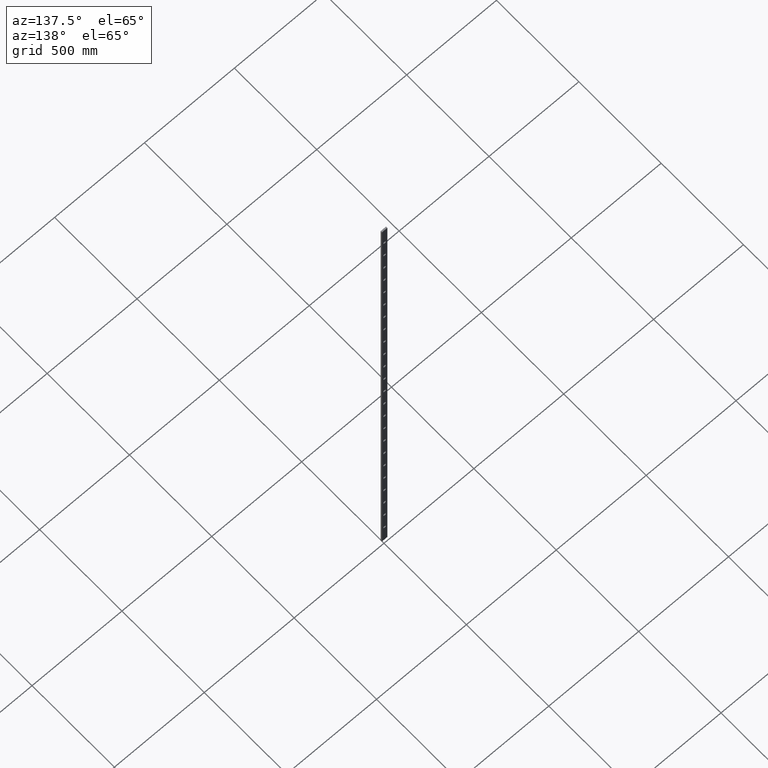
[diagram: clean part render]
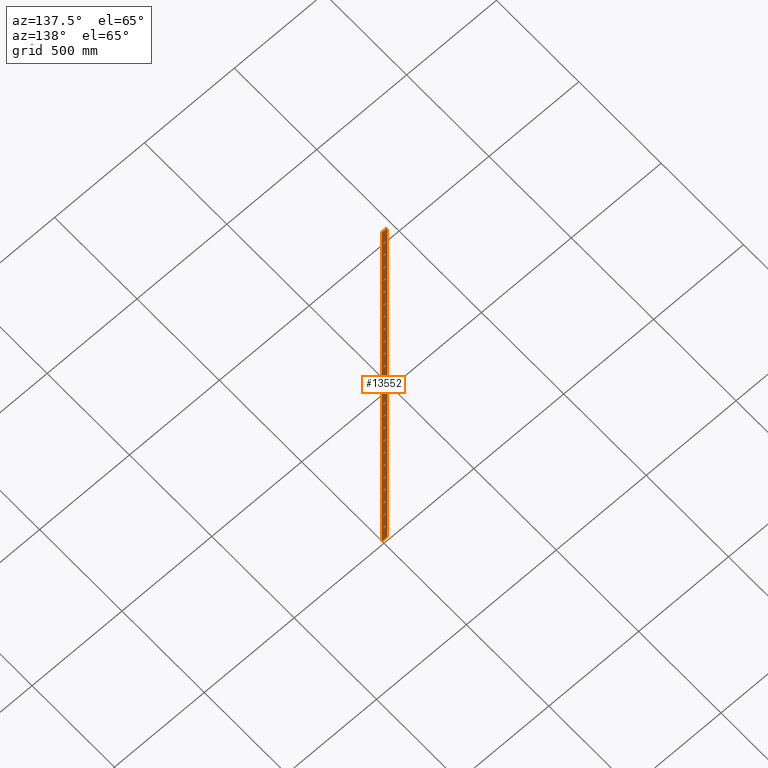
[diagram: same view with one face highlighted and labeled with its STEP entity id]
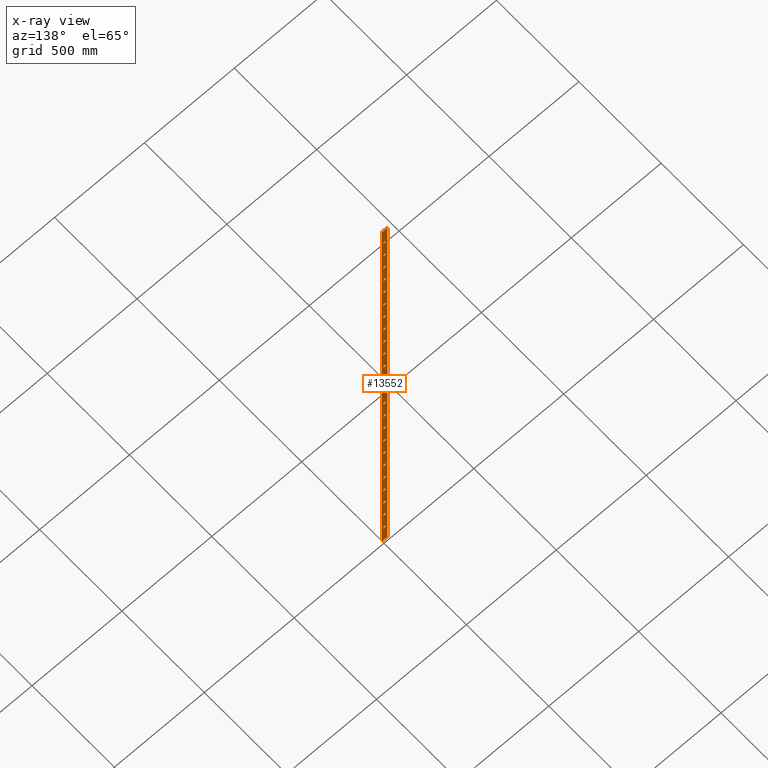
[diagram: x-ray of the same camera — body ghosted, the highlighted face saturated]
A machine part, auxiliary view. The second image highlights one B-rep face of the part: STEP entity #13552.
The next image is the same camera in x-ray: the body ghosted, the highlighted face saturated — about 0% of this face is hidden behind the body in this view.
In plain terms, the highlighted planar face has unit normal (0, 1, 0).
Its self-contained STEP definition (entity closure, byte-faithful):
#9 = DIRECTION ( 'NONE',  ( -0.000000000000000000, -0.000000000000000000, -1.000000000000000000 ) ) ;
#10 = VECTOR ( 'NONE', #15790, 1000.000000000000000 ) ;
#14 = ORIENTED_EDGE ( 'NONE', *, *, #17220, .F. ) ;
#42 = VERTEX_POINT ( 'NONE', #14170 ) ;
#44 = ORIENTED_EDGE ( 'NONE', *, *, #3305, .F. ) ;
#132 = DIRECTION ( 'NONE',  ( 1.334402673828323446E-16, 0.000000000000000000, 1.000000000000000000 ) ) ;
#176 = ORIENTED_EDGE ( 'NONE', *, *, #10719, .F. ) ;
#222 = CARTESIAN_POINT ( 'NONE',  ( -6.499999999999968914, 4.000000000000000000, -1133.500000000000227 ) ) ;
#241 = DIRECTION ( 'NONE',  ( 1.000000000000000000, 0.000000000000000000, 0.000000000000000000 ) ) ;
#256 = FACE_BOUND ( 'NONE', #5189, .T. ) ;
#335 = VECTOR ( 'NONE', #15452, 1000.000000000000000 ) ;
#340 = CARTESIAN_POINT ( 'NONE',  ( 6.500000000000308198, 4.000000000000000000, 1133.499999999997499 ) ) ;
#363 = CARTESIAN_POINT ( 'NONE',  ( 6.500000000000103029, 4.000000000000000000, -533.5000000000007958 ) ) ;
#457 = FACE_BOUND ( 'NONE', #5804, .T. ) ;
#458 = CARTESIAN_POINT ( 'NONE',  ( -6.499999999999689138, 4.000000000000000000, 1146.499999999997499 ) ) ;
#511 = VERTEX_POINT ( 'NONE', #2990 ) ;
#518 = CARTESIAN_POINT ( 'NONE',  ( -6.499999999999762856, 4.000000000000000000, 546.4999999999979536 ) ) ;
#549 = EDGE_CURVE ( 'NONE', #7540, #9321, #11278, .T. ) ;
#557 = EDGE_LOOP ( 'NONE', ( #3584, #12918, #15809, #176 ) ) ;
#558 = DIRECTION ( 'NONE',  ( -1.000000000000000000, -0.000000000000000000, -0.000000000000000000 ) ) ;
#596 = CARTESIAN_POINT ( 'NONE',  ( 6.500000000000029310, 4.000000000000000000, -1146.500000000000000 ) ) ;
#597 = VECTOR ( 'NONE', #14882, 1000.000000000000000 ) ;
#599 = CARTESIAN_POINT ( 'NONE',  ( 15.00000000000000000, 4.000000000000000000, -1500.000000000000000 ) ) ;
#643 = LINE ( 'NONE', #6776, #5119 ) ;
#671 = EDGE_CURVE ( 'NONE', #10078, #15834, #11053, .T. ) ;
#687 = LINE ( 'NONE', #16273, #10884 ) ;
#725 = EDGE_CURVE ( 'NONE', #11865, #15817, #8949, .T. ) ;
#738 = VERTEX_POINT ( 'NONE', #11027 ) ;
#744 = DIRECTION ( 'NONE',  ( 1.000000000000000000, 0.000000000000000000, 1.708035422500241074E-14 ) ) ;
#760 = CARTESIAN_POINT ( 'NONE',  ( -6.499999999999881872, 4.000000000000000000, -426.5000000000007958 ) ) ;
#776 = DIRECTION ( 'NONE',  ( 1.000000000000000000, 0.000000000000000000, 0.000000000000000000 ) ) ;
#798 = VECTOR ( 'NONE', #132, 1000.000000000000000 ) ;
#812 = LINE ( 'NONE', #7276, #7411 ) ;
#832 = LINE ( 'NONE', #13876, #7656 ) ;
#865 = DIRECTION ( 'NONE',  ( 1.000000000000000000, 0.000000000000000000, 0.000000000000000000 ) ) ;
#882 = VECTOR ( 'NONE', #9, 1000.000000000000000 ) ;
#1023 = VERTEX_POINT ( 'NONE', #5314 ) ;
#1029 = ORIENTED_EDGE ( 'NONE', *, *, #2967, .F. ) ;
#1030 = ORIENTED_EDGE ( 'NONE', *, *, #2696, .F. ) ;
#1031 = VERTEX_POINT ( 'NONE', #1262 ) ;
#1048 = ORIENTED_EDGE ( 'NONE', *, *, #10416, .F. ) ;
#1060 = LINE ( 'NONE', #6202, #14403 ) ;
#1099 = LINE ( 'NONE', #5880, #14674 ) ;
#1118 = VECTOR ( 'NONE', #2690, 1000.000000000000000 ) ;
#1137 = CARTESIAN_POINT ( 'NONE',  ( -6.499999999999911182, 4.000000000000000000, -666.5000000000005684 ) ) ;
#1170 = ORIENTED_EDGE ( 'NONE', *, *, #16291, .F. ) ;
#1215 = VECTOR ( 'NONE', #16669, 1000.000000000000000 ) ;
#1232 = CARTESIAN_POINT ( 'NONE',  ( -6.499999999999895195, 4.000000000000000000, -533.5000000000007958 ) ) ;
#1249 = VERTEX_POINT ( 'NONE', #10119 ) ;
#1262 = CARTESIAN_POINT ( 'NONE',  ( -6.499999999999807265, 4.000000000000000000, 186.4999999999983231 ) ) ;
#1298 = CARTESIAN_POINT ( 'NONE',  ( -6.499999999999853451, 4.000000000000000000, -186.5000000000012221 ) ) ;
#1316 = VECTOR ( 'NONE', #7007, 1000.000000000000000 ) ;
#1360 = DIRECTION ( 'NONE',  ( -0.000000000000000000, -0.000000000000000000, -1.000000000000000000 ) ) ;
#1365 = CARTESIAN_POINT ( 'NONE',  ( -6.499999999999793943, 4.000000000000000000, 293.4999999999982947 ) ) ;
#1375 = DIRECTION ( 'NONE',  ( -0.000000000000000000, -0.000000000000000000, -1.000000000000000000 ) ) ;
#1404 = EDGE_CURVE ( 'NONE', #9008, #6165, #7886, .T. ) ;
#1421 = CARTESIAN_POINT ( 'NONE',  ( -6.499999999999690914, 4.000000000000000000, 1133.499999999997499 ) ) ;
#1438 = LINE ( 'NONE', #2962, #15439 ) ;
#1444 = CARTESIAN_POINT ( 'NONE',  ( -6.499999999999659828, 4.000000000000000000, 1386.499999999997272 ) ) ;
#1514 = CARTESIAN_POINT ( 'NONE',  ( 6.500000000000000000, 4.000000000000000000, -1373.500000000000000 ) ) ;
#1519 = FACE_BOUND ( 'NONE', #7299, .T. ) ;
#1543 = LINE ( 'NONE', #1421, #12787 ) ;
#1582 = ORIENTED_EDGE ( 'NONE', *, *, #16320, .F. ) ;
#1586 = CARTESIAN_POINT ( 'NONE',  ( 6.500000000000293987, 4.000000000000000000, 1026.499999999997272 ) ) ;
#1595 = DIRECTION ( 'NONE',  ( -1.000000000000000000, -0.000000000000000000, -0.000000000000000000 ) ) ;
#1619 = EDGE_CURVE ( 'NONE', #13429, #7208, #2581, .T. ) ;
#1639 = DIRECTION ( 'NONE',  ( 0.000000000000000000, -0.000000000000000000, 1.000000000000000000 ) ) ;
#1657 = CARTESIAN_POINT ( 'NONE',  ( 6.500000000000175859, 4.000000000000000000, 66.49999999999845102 ) ) ;
#1683 = DIRECTION ( 'NONE',  ( 1.334402673828323446E-16, 0.000000000000000000, 1.000000000000000000 ) ) ;
#1699 = EDGE_CURVE ( 'NONE', #4124, #9385, #11253, .T. ) ;
#1750 = CARTESIAN_POINT ( 'NONE',  ( -6.499999999999809042, 4.000000000000000000, 173.4999999999984368 ) ) ;
#1759 = VECTOR ( 'NONE', #6133, 1000.000000000000000 ) ;
#1775 = DIRECTION ( 'NONE',  ( 1.000000000000000000, 0.000000000000000000, 0.000000000000000000 ) ) ;
#1779 = EDGE_CURVE ( 'NONE', #12780, #5205, #15695, .T. ) ;
#1812 = EDGE_CURVE ( 'NONE', #4084, #4356, #12076, .T. ) ;
#1923 = ORIENTED_EDGE ( 'NONE', *, *, #7872, .T. ) ;
#1930 = DIRECTION ( 'NONE',  ( 1.334402673828323446E-16, 0.000000000000000000, 1.000000000000000000 ) ) ;
#2019 = DIRECTION ( 'NONE',  ( -1.000000000000000000, -0.000000000000000000, -0.000000000000000000 ) ) ;
#2031 = CARTESIAN_POINT ( 'NONE',  ( -6.499999999999938716, 4.000000000000000000, -893.5000000000004547 ) ) ;
#2051 = CARTESIAN_POINT ( 'NONE',  ( 6.500000000000264677, 4.000000000000000000, 773.4999999999976126 ) ) ;
#2083 = CARTESIAN_POINT ( 'NONE',  ( -6.499999999999867661, 4.000000000000000000, -306.5000000000010800 ) ) ;
#2117 = ORIENTED_EDGE ( 'NONE', *, *, #5373, .F. ) ;
#2153 = CARTESIAN_POINT ( 'NONE',  ( -6.499999999999706013, 4.000000000000000000, 1013.499999999997385 ) ) ;
#2172 = VERTEX_POINT ( 'NONE', #15056 ) ;
#2177 = DIRECTION ( 'NONE',  ( -1.000000000000000000, -0.000000000000000000, -0.000000000000000000 ) ) ;
#2191 = VERTEX_POINT ( 'NONE', #15523 ) ;
#2234 = DIRECTION ( 'NONE',  ( -1.000000000000000000, -0.000000000000000000, -0.000000000000000000 ) ) ;
#2251 = VERTEX_POINT ( 'NONE', #4469 ) ;
#2282 = CARTESIAN_POINT ( 'NONE',  ( -6.499999999999968914, 4.000000000000000000, -1133.500000000000227 ) ) ;
#2314 = EDGE_CURVE ( 'NONE', #14869, #2191, #12503, .T. ) ;
#2323 = DIRECTION ( 'NONE',  ( -1.000000000000000000, -0.000000000000000000, -0.000000000000000000 ) ) ;
#2325 = VERTEX_POINT ( 'NONE', #11652 ) ;
#2355 = CARTESIAN_POINT ( 'NONE',  ( -6.499999999999690914, 4.000000000000000000, 1133.499999999997499 ) ) ;
#2408 = LINE ( 'NONE', #13922, #14050 ) ;
#2417 = ORIENTED_EDGE ( 'NONE', *, *, #11041, .F. ) ;
#2419 = EDGE_CURVE ( 'NONE', #16064, #2543, #15699, .T. ) ;
#2426 = FACE_BOUND ( 'NONE', #5022, .T. ) ;
#2446 = EDGE_CURVE ( 'NONE', #15834, #16081, #13587, .T. ) ;
#2448 = CARTESIAN_POINT ( 'NONE',  ( -15.00000000000000000, 4.000000000000000000, -1500.000000000000000 ) ) ;
#2472 = VECTOR ( 'NONE', #9808, 1000.000000000000000 ) ;
#2485 = CARTESIAN_POINT ( 'NONE',  ( -6.499999999999809042, 4.000000000000000000, 173.4999999999984368 ) ) ;
#2505 = VECTOR ( 'NONE', #6652, 1000.000000000000000 ) ;
#2509 = EDGE_LOOP ( 'NONE', ( #6162, #14, #13081, #6426 ) ) ;
#2537 = ORIENTED_EDGE ( 'NONE', *, *, #5891, .F. ) ;
#2543 = VERTEX_POINT ( 'NONE', #13542 ) ;
#2581 = LINE ( 'NONE', #11126, #5538 ) ;
#2587 = ORIENTED_EDGE ( 'NONE', *, *, #4902, .F. ) ;
#2592 = VECTOR ( 'NONE', #14051, 1000.000000000000000 ) ;
#2593 = VERTEX_POINT ( 'NONE', #1514 ) ;
#2599 = DIRECTION ( 'NONE',  ( 1.000000000000000000, 0.000000000000000000, 0.000000000000000000 ) ) ;
#2608 = LINE ( 'NONE', #13008, #3457 ) ;
#2620 = VECTOR ( 'NONE', #4109, 1000.000000000000000 ) ;
#2631 = DIRECTION ( 'NONE',  ( -1.000000000000000000, -0.000000000000000000, -0.000000000000000000 ) ) ;
#2641 = VECTOR ( 'NONE', #4534, 1000.000000000000000 ) ;
#2673 = CARTESIAN_POINT ( 'NONE',  ( -6.499999999999867661, 4.000000000000000000, -306.5000000000010800 ) ) ;
#2690 = DIRECTION ( 'NONE',  ( 1.334402673828323446E-16, 0.000000000000000000, 1.000000000000000000 ) ) ;
#2696 = EDGE_CURVE ( 'NONE', #8786, #13429, #3426, .T. ) ;
#2754 = CARTESIAN_POINT ( 'NONE',  ( -6.499999999999690914, 4.000000000000000000, 1133.499999999997499 ) ) ;
#2760 = VECTOR ( 'NONE', #14467, 1000.000000000000000 ) ;
#2782 = VERTEX_POINT ( 'NONE', #14363 ) ;
#2798 = ORIENTED_EDGE ( 'NONE', *, *, #4230, .F. ) ;
#2818 = FACE_BOUND ( 'NONE', #8283, .T. ) ;
#2843 = LINE ( 'NONE', #16794, #10288 ) ;
#2844 = VERTEX_POINT ( 'NONE', #7707 ) ;
#2870 = DIRECTION ( 'NONE',  ( 1.334402673828323446E-16, 0.000000000000000000, 1.000000000000000000 ) ) ;
#2896 = VECTOR ( 'NONE', #2631, 1000.000000000000000 ) ;
#2918 = VERTEX_POINT ( 'NONE', #5369 ) ;
#2962 = CARTESIAN_POINT ( 'NONE',  ( -6.499999999999733546, 4.000000000000000000, 786.4999999999974989 ) ) ;
#2965 = CARTESIAN_POINT ( 'NONE',  ( 6.500000000000264677, 4.000000000000000000, 773.4999999999976126 ) ) ;
#2967 = EDGE_CURVE ( 'NONE', #14321, #4124, #3194, .T. ) ;
#2990 = CARTESIAN_POINT ( 'NONE',  ( -6.499999999999675815, 4.000000000000000000, 1253.499999999997272 ) ) ;
#3049 = LINE ( 'NONE', #1750, #4134 ) ;
#3075 = CARTESIAN_POINT ( 'NONE',  ( -6.499999999999764633, 4.000000000000000000, 533.4999999999980673 ) ) ;
#3076 = EDGE_CURVE ( 'NONE', #10496, #11497, #5969, .T. ) ;
#3083 = CARTESIAN_POINT ( 'NONE',  ( 6.500000000000073719, 4.000000000000000000, -786.5000000000004547 ) ) ;
#3089 = CARTESIAN_POINT ( 'NONE',  ( -6.499999999999733546, 4.000000000000000000, 786.4999999999974989 ) ) ;
#3094 = LINE ( 'NONE', #3722, #17058 ) ;
#3096 = CARTESIAN_POINT ( 'NONE',  ( 6.500000000000073719, 4.000000000000000000, -773.5000000000005684 ) ) ;
#3119 = VERTEX_POINT ( 'NONE', #14971 ) ;
#3145 = VECTOR ( 'NONE', #1775, 1000.000000000000000 ) ;
#3146 = DIRECTION ( 'NONE',  ( -0.000000000000000000, -0.000000000000000000, -1.000000000000000000 ) ) ;
#3157 = CARTESIAN_POINT ( 'NONE',  ( 6.500000000000278888, 4.000000000000000000, 893.4999999999977263 ) ) ;
#3180 = EDGE_LOOP ( 'NONE', ( #44, #4083, #6243, #4872 ) ) ;
#3190 = EDGE_CURVE ( 'NONE', #9689, #8181, #3921, .T. ) ;
#3194 = LINE ( 'NONE', #4454, #9755 ) ;
#3214 = EDGE_CURVE ( 'NONE', #3424, #7836, #4562, .T. ) ;
#3248 = VECTOR ( 'NONE', #17399, 1000.000000000000000 ) ;
#3270 = EDGE_CURVE ( 'NONE', #7546, #5719, #5614, .T. ) ;
#3305 = EDGE_CURVE ( 'NONE', #2844, #9689, #9017, .T. ) ;
#3307 = FACE_OUTER_BOUND ( 'NONE', #14925, .T. ) ;
#3334 = DIRECTION ( 'NONE',  ( -0.000000000000000000, -0.000000000000000000, -1.000000000000000000 ) ) ;
#3357 = LINE ( 'NONE', #9198, #8027 ) ;
#3392 = CARTESIAN_POINT ( 'NONE',  ( -6.499999999999969802, 4.000000000000000000, -1146.500000000000000 ) ) ;
#3424 = VERTEX_POINT ( 'NONE', #5446 ) ;
#3426 = LINE ( 'NONE', #10012, #8756 ) ;
#3455 = CARTESIAN_POINT ( 'NONE',  ( 6.500000000000000000, 4.000000000000000000, -1386.499999999999773 ) ) ;
#3457 = VECTOR ( 'NONE', #17309, 1000.000000000000000 ) ;
#3484 = VECTOR ( 'NONE', #16248, 1000.000000000000000 ) ;
#3505 = VERTEX_POINT ( 'NONE', #9773 ) ;
#3552 = VECTOR ( 'NONE', #10541, 1000.000000000000000 ) ;
#3558 = DIRECTION ( 'NONE',  ( 1.000000000000000000, 0.000000000000000000, 0.000000000000000000 ) ) ;
#3584 = ORIENTED_EDGE ( 'NONE', *, *, #3270, .F. ) ;
#3595 = CARTESIAN_POINT ( 'NONE',  ( 6.500000000000103029, 4.000000000000000000, -546.5000000000006821 ) ) ;
#3596 = ORIENTED_EDGE ( 'NONE', *, *, #16550, .F. ) ;
#3602 = VERTEX_POINT ( 'NONE', #12542 ) ;
#3621 = VECTOR ( 'NONE', #13613, 1000.000000000000000 ) ;
#3624 = DIRECTION ( 'NONE',  ( -0.000000000000000000, -0.000000000000000000, -1.000000000000000000 ) ) ;
#3643 = VECTOR ( 'NONE', #8212, 1000.000000000000000 ) ;
#3722 = CARTESIAN_POINT ( 'NONE',  ( -6.499999999999896083, 4.000000000000000000, -546.5000000000006821 ) ) ;
#3752 = EDGE_CURVE ( 'NONE', #5205, #5019, #5605, .T. ) ;
#3756 = ORIENTED_EDGE ( 'NONE', *, *, #13218, .F. ) ;
#3804 = CARTESIAN_POINT ( 'NONE',  ( -6.499999999999911182, 4.000000000000000000, -666.5000000000005684 ) ) ;
#3858 = EDGE_CURVE ( 'NONE', #9818, #11414, #9838, .T. ) ;
#3868 = VERTEX_POINT ( 'NONE', #4640 ) ;
#3885 = ORIENTED_EDGE ( 'NONE', *, *, #10003, .F. ) ;
#3905 = VERTEX_POINT ( 'NONE', #8958 ) ;
#3906 = VECTOR ( 'NONE', #1930, 1000.000000000000000 ) ;
#3921 = LINE ( 'NONE', #15514, #10304 ) ;
#3975 = CARTESIAN_POINT ( 'NONE',  ( 6.500000000000146549, 4.000000000000000000, -186.5000000000012221 ) ) ;
#3990 = CARTESIAN_POINT ( 'NONE',  ( -6.499999999999793943, 4.000000000000000000, 293.4999999999982947 ) ) ;
#4012 = CARTESIAN_POINT ( 'NONE',  ( -6.499999999999779732, 4.000000000000000000, 413.4999999999981810 ) ) ;
#4019 = EDGE_CURVE ( 'NONE', #16081, #15128, #9623, .T. ) ;
#4030 = DIRECTION ( 'NONE',  ( 1.334402673828323446E-16, 0.000000000000000000, 1.000000000000000000 ) ) ;
#4078 = LINE ( 'NONE', #2355, #15948 ) ;
#4083 = ORIENTED_EDGE ( 'NONE', *, *, #5238, .F. ) ;
#4084 = VERTEX_POINT ( 'NONE', #5727 ) ;
#4091 = LINE ( 'NONE', #9433, #17203 ) ;
#4094 = EDGE_CURVE ( 'NONE', #11497, #1031, #3049, .T. ) ;
#4104 = VERTEX_POINT ( 'NONE', #15299 ) ;
#4109 = DIRECTION ( 'NONE',  ( -1.000000000000000000, -0.000000000000000000, -0.000000000000000000 ) ) ;
#4124 = VERTEX_POINT ( 'NONE', #11228 ) ;
#4127 = DIRECTION ( 'NONE',  ( 1.000000000000000000, 0.000000000000000000, 0.000000000000000000 ) ) ;
#4131 = EDGE_CURVE ( 'NONE', #3119, #4370, #7094, .T. ) ;
#4134 = VECTOR ( 'NONE', #1683, 1000.000000000000000 ) ;
#4182 = CARTESIAN_POINT ( 'NONE',  ( 6.500000000000058620, 4.000000000000000000, -906.5000000000003411 ) ) ;
#4187 = LINE ( 'NONE', #9313, #2896 ) ;
#4200 = LINE ( 'NONE', #11116, #798 ) ;
#4230 = EDGE_CURVE ( 'NONE', #6008, #13866, #2843, .T. ) ;
#4246 = LINE ( 'NONE', #15233, #14839 ) ;
#4263 = DIRECTION ( 'NONE',  ( 1.000000000000000000, 0.000000000000000000, 0.000000000000000000 ) ) ;
#4267 = VECTOR ( 'NONE', #11714, 1000.000000000000000 ) ;
#4309 = FACE_BOUND ( 'NONE', #557, .T. ) ;
#4339 = ORIENTED_EDGE ( 'NONE', *, *, #16876, .F. ) ;
#4356 = VERTEX_POINT ( 'NONE', #13589 ) ;
#4370 = VERTEX_POINT ( 'NONE', #8508 ) ;
#4387 = LINE ( 'NONE', #9767, #10956 ) ;
#4444 = VECTOR ( 'NONE', #9375, 1000.000000000000000 ) ;
#4454 = CARTESIAN_POINT ( 'NONE',  ( -6.499999999999940492, 4.000000000000000000, -906.5000000000003411 ) ) ;
#4466 = CARTESIAN_POINT ( 'NONE',  ( 6.500000000000308198, 4.000000000000000000, 1146.499999999997499 ) ) ;
#4469 = CARTESIAN_POINT ( 'NONE',  ( 6.500000000000029310, 4.000000000000000000, -1146.500000000000000 ) ) ;
#4478 = VECTOR ( 'NONE', #2599, 1000.000000000000000 ) ;
#4534 = DIRECTION ( 'NONE',  ( 1.334402673828323446E-16, 0.000000000000000000, 1.000000000000000000 ) ) ;
#4539 = LINE ( 'NONE', #3392, #1759 ) ;
#4549 = LINE ( 'NONE', #17568, #7304 ) ;
#4555 = EDGE_CURVE ( 'NONE', #13481, #11865, #15111, .T. ) ;
#4562 = LINE ( 'NONE', #2153, #12578 ) ;
#4571 = CARTESIAN_POINT ( 'NONE',  ( -6.499999999999867661, 4.000000000000000000, -306.5000000000010800 ) ) ;
#4583 = ORIENTED_EDGE ( 'NONE', *, *, #6695, .F. ) ;
#4632 = DIRECTION ( 'NONE',  ( 1.334402673828323446E-16, 0.000000000000000000, 1.000000000000000000 ) ) ;
#4637 = CARTESIAN_POINT ( 'NONE',  ( -6.499999999999821476, 4.000000000000000000, 66.49999999999845102 ) ) ;
#4640 = CARTESIAN_POINT ( 'NONE',  ( -6.499999999999880096, 4.000000000000000000, -413.5000000000008527 ) ) ;
#4663 = CARTESIAN_POINT ( 'NONE',  ( 6.500000000000338396, 4.000000000000000000, 1386.499999999997272 ) ) ;
#4824 = LINE ( 'NONE', #9074, #11578 ) ;
#4854 = EDGE_CURVE ( 'NONE', #7208, #14774, #687, .T. ) ;
#4872 = ORIENTED_EDGE ( 'NONE', *, *, #3190, .F. ) ;
#4885 = CARTESIAN_POINT ( 'NONE',  ( -6.499999999999955591, 4.000000000000000000, -1026.500000000000227 ) ) ;
#4896 = LINE ( 'NONE', #16369, #6597 ) ;
#4901 = LINE ( 'NONE', #14730, #4478 ) ;
#4902 = EDGE_CURVE ( 'NONE', #11260, #4104, #4549, .T. ) ;
#4904 = VECTOR ( 'NONE', #865, 1000.000000000000000 ) ;
#4950 = FACE_BOUND ( 'NONE', #11826, .T. ) ;
#4964 = FACE_BOUND ( 'NONE', #3180, .T. ) ;
#4973 = VERTEX_POINT ( 'NONE', #11149 ) ;
#4979 = DIRECTION ( 'NONE',  ( 1.334402673828323446E-16, 0.000000000000000000, 1.000000000000000000 ) ) ;
#4980 = EDGE_CURVE ( 'NONE', #2191, #511, #2408, .T. ) ;
#4998 = CARTESIAN_POINT ( 'NONE',  ( 6.500000000000160760, 4.000000000000000000, -66.50000000000133582 ) ) ;
#5005 = CARTESIAN_POINT ( 'NONE',  ( 6.500000000000131450, 4.000000000000000000, -306.5000000000010800 ) ) ;
#5011 = CARTESIAN_POINT ( 'NONE',  ( 6.500000000000205169, 4.000000000000000000, 293.4999999999982947 ) ) ;
#5015 = ORIENTED_EDGE ( 'NONE', *, *, #5544, .F. ) ;
#5019 = VERTEX_POINT ( 'NONE', #7073 ) ;
#5022 = EDGE_LOOP ( 'NONE', ( #3756, #13630, #3596, #17142 ) ) ;
#5024 = ORIENTED_EDGE ( 'NONE', *, *, #15529, .F. ) ;
#5030 = EDGE_CURVE ( 'NONE', #1023, #10128, #9175, .T. ) ;
#5036 = CARTESIAN_POINT ( 'NONE',  ( -6.499999999999924505, 4.000000000000000000, -773.5000000000005684 ) ) ;
#5050 = LINE ( 'NONE', #4571, #9295 ) ;
#5059 = EDGE_CURVE ( 'NONE', #9829, #15697, #10871, .T. ) ;
#5087 = ORIENTED_EDGE ( 'NONE', *, *, #13419, .F. ) ;
#5119 = VECTOR ( 'NONE', #7453, 1000.000000000000000 ) ;
#5158 = CARTESIAN_POINT ( 'NONE',  ( 15.00000000000000000, 4.000000000000000000, 1500.000000000000000 ) ) ;
#5177 = ORIENTED_EDGE ( 'NONE', *, *, #10743, .F. ) ;
#5189 = EDGE_LOOP ( 'NONE', ( #16021, #1582, #15596, #10798 ) ) ;
#5205 = VERTEX_POINT ( 'NONE', #6488 ) ;
#5212 = EDGE_CURVE ( 'NONE', #8658, #6009, #4091, .T. ) ;
#5218 = EDGE_CURVE ( 'NONE', #11564, #11561, #13187, .T. ) ;
#5233 = DIRECTION ( 'NONE',  ( 1.000000000000000000, 0.000000000000000000, 0.000000000000000000 ) ) ;
#5234 = CARTESIAN_POINT ( 'NONE',  ( 6.500000000000338396, 4.000000000000000000, 1373.499999999997272 ) ) ;
#5238 = EDGE_CURVE ( 'NONE', #11073, #2844, #5368, .T. ) ;
#5264 = EDGE_CURVE ( 'NONE', #14895, #3119, #9819, .T. ) ;
#5303 = CARTESIAN_POINT ( 'NONE',  ( -6.499999999999926281, 4.000000000000000000, -786.5000000000004547 ) ) ;
#5314 = CARTESIAN_POINT ( 'NONE',  ( 6.500000000000264677, 4.000000000000000000, 786.4999999999974989 ) ) ;
#5358 = VECTOR ( 'NONE', #2234, 1000.000000000000000 ) ;
#5368 = LINE ( 'NONE', #6769, #11300 ) ;
#5369 = CARTESIAN_POINT ( 'NONE',  ( 6.500000000000087930, 4.000000000000000000, -666.5000000000005684 ) ) ;
#5373 = EDGE_CURVE ( 'NONE', #2918, #11321, #12990, .T. ) ;
#5395 = EDGE_CURVE ( 'NONE', #15817, #11545, #17005, .T. ) ;
#5411 = CARTESIAN_POINT ( 'NONE',  ( -6.499999999999706013, 4.000000000000000000, 1013.499999999997385 ) ) ;
#5429 = CARTESIAN_POINT ( 'NONE',  ( 6.500000000000160760, 4.000000000000000000, -53.50000000000143530 ) ) ;
#5446 = CARTESIAN_POINT ( 'NONE',  ( -6.499999999999706013, 4.000000000000000000, 1013.499999999997385 ) ) ;
#5459 = VERTEX_POINT ( 'NONE', #16580 ) ;
#5468 = EDGE_CURVE ( 'NONE', #10309, #10496, #1099, .T. ) ;
#5538 = VECTOR ( 'NONE', #10915, 1000.000000000000000 ) ;
#5544 = EDGE_CURVE ( 'NONE', #11299, #3424, #11091, .T. ) ;
#5605 = LINE ( 'NONE', #8582, #3906 ) ;
#5610 = ORIENTED_EDGE ( 'NONE', *, *, #6905, .F. ) ;
#5614 = LINE ( 'NONE', #15698, #17453 ) ;
#5661 = EDGE_CURVE ( 'NONE', #5019, #15626, #15116, .T. ) ;
#5685 = DIRECTION ( 'NONE',  ( -1.000000000000000000, -0.000000000000000000, -0.000000000000000000 ) ) ;
#5694 = CARTESIAN_POINT ( 'NONE',  ( 6.500000000000043521, 4.000000000000000000, -1026.500000000000227 ) ) ;
#5706 = ORIENTED_EDGE ( 'NONE', *, *, #9860, .F. ) ;
#5719 = VERTEX_POINT ( 'NONE', #5005 ) ;
#5727 = CARTESIAN_POINT ( 'NONE',  ( -6.499999999999777955, 4.000000000000000000, 426.4999999999981242 ) ) ;
#5759 = LINE ( 'NONE', #6901, #16977 ) ;
#5804 = EDGE_LOOP ( 'NONE', ( #9123, #4339, #1170, #11928 ) ) ;
#5832 = ORIENTED_EDGE ( 'NONE', *, *, #12145, .F. ) ;
#5863 = EDGE_CURVE ( 'NONE', #10230, #738, #1543, .T. ) ;
#5880 = CARTESIAN_POINT ( 'NONE',  ( 6.500000000000190958, 4.000000000000000000, 173.4999999999984368 ) ) ;
#5891 = EDGE_CURVE ( 'NONE', #6180, #14837, #15542, .T. ) ;
#5957 = EDGE_LOOP ( 'NONE', ( #6922, #11696, #12998, #5610 ) ) ;
#5969 = LINE ( 'NONE', #2485, #16334 ) ;
#5990 = DIRECTION ( 'NONE',  ( 1.334402673828323446E-16, 0.000000000000000000, 1.000000000000000000 ) ) ;
#6008 = VERTEX_POINT ( 'NONE', #9916 ) ;
#6009 = VERTEX_POINT ( 'NONE', #5694 ) ;
#6032 = VERTEX_POINT ( 'NONE', #4466 ) ;
#6089 = VERTEX_POINT ( 'NONE', #15343 ) ;
#6120 = EDGE_CURVE ( 'NONE', #9663, #9829, #4539, .T. ) ;
#6129 = LINE ( 'NONE', #3804, #2505 ) ;
#6133 = DIRECTION ( 'NONE',  ( 1.334402673828323446E-16, 0.000000000000000000, 1.000000000000000000 ) ) ;
#6155 = VECTOR ( 'NONE', #2870, 1000.000000000000000 ) ;
#6162 = ORIENTED_EDGE ( 'NONE', *, *, #671, .F. ) ;
#6165 = VERTEX_POINT ( 'NONE', #6411 ) ;
#6180 = VERTEX_POINT ( 'NONE', #11598 ) ;
#6192 = EDGE_CURVE ( 'NONE', #6009, #9818, #17205, .T. ) ;
#6202 = CARTESIAN_POINT ( 'NONE',  ( -6.499999999999720224, 4.000000000000000000, 893.4999999999977263 ) ) ;
#6243 = ORIENTED_EDGE ( 'NONE', *, *, #15808, .F. ) ;
#6250 = EDGE_LOOP ( 'NONE', ( #10144, #12776, #11693, #1029 ) ) ;
#6256 = CARTESIAN_POINT ( 'NONE',  ( -6.500000000000000000, 4.000000000000000000, -1386.499999999999773 ) ) ;
#6371 = EDGE_LOOP ( 'NONE', ( #15912, #16777, #14090, #2117 ) ) ;
#6394 = EDGE_CURVE ( 'NONE', #2593, #11708, #16591, .T. ) ;
#6407 = CARTESIAN_POINT ( 'NONE',  ( 6.500000000000087930, 4.000000000000000000, -653.5000000000006821 ) ) ;
#6411 = CARTESIAN_POINT ( 'NONE',  ( 6.500000000000103029, 4.000000000000000000, -546.5000000000006821 ) ) ;
#6416 = LINE ( 'NONE', #2673, #15924 ) ;
#6426 = ORIENTED_EDGE ( 'NONE', *, *, #2446, .F. ) ;
#6443 = ORIENTED_EDGE ( 'NONE', *, *, #3076, .F. ) ;
#6484 = FACE_BOUND ( 'NONE', #6250, .T. ) ;
#6488 = CARTESIAN_POINT ( 'NONE',  ( -6.499999999999984901, 4.000000000000000000, -1266.500000000000000 ) ) ;
#6536 = VECTOR ( 'NONE', #8344, 1000.000000000000000 ) ;
#6556 = ORIENTED_EDGE ( 'NONE', *, *, #3752, .F. ) ;
#6597 = VECTOR ( 'NONE', #9634, 1000.000000000000000 ) ;
#6605 = CARTESIAN_POINT ( 'NONE',  ( 6.500000000000308198, 4.000000000000000000, 1133.499999999997499 ) ) ;
#6606 = VECTOR ( 'NONE', #17214, 1000.000000000000000 ) ;
#6625 = VECTOR ( 'NONE', #744, 1000.000000000000000 ) ;
#6637 = CARTESIAN_POINT ( 'NONE',  ( -6.499999999999661604, 4.000000000000000000, 1373.499999999997272 ) ) ;
#6652 = DIRECTION ( 'NONE',  ( 1.334402673828323446E-16, 0.000000000000000000, 1.000000000000000000 ) ) ;
#6667 = EDGE_CURVE ( 'NONE', #3868, #1249, #2608, .T. ) ;
#6669 = CARTESIAN_POINT ( 'NONE',  ( 6.500000000000043521, 4.000000000000000000, -1013.500000000000341 ) ) ;
#6695 = EDGE_CURVE ( 'NONE', #10670, #11299, #12527, .T. ) ;
#6726 = ORIENTED_EDGE ( 'NONE', *, *, #17065, .F. ) ;
#6769 = CARTESIAN_POINT ( 'NONE',  ( -6.499999999999851674, 4.000000000000000000, -173.5000000000013074 ) ) ;
#6776 = CARTESIAN_POINT ( 'NONE',  ( -15.00000000000000000, 4.000000000000000000, 1500.000000000000000 ) ) ;
#6779 = LINE ( 'NONE', #596, #7446 ) ;
#6802 = VECTOR ( 'NONE', #11976, 1000.000000000000000 ) ;
#6812 = DIRECTION ( 'NONE',  ( -0.000000000000000000, -0.000000000000000000, -1.000000000000000000 ) ) ;
#6887 = DIRECTION ( 'NONE',  ( -0.000000000000000000, -0.000000000000000000, -1.000000000000000000 ) ) ;
#6901 = CARTESIAN_POINT ( 'NONE',  ( 6.500000000000058620, 4.000000000000000000, -906.5000000000003411 ) ) ;
#6905 = EDGE_CURVE ( 'NONE', #2251, #9663, #8967, .T. ) ;
#6922 = ORIENTED_EDGE ( 'NONE', *, *, #9036, .F. ) ;
#6926 = VERTEX_POINT ( 'NONE', #17298 ) ;
#6958 = EDGE_CURVE ( 'NONE', #11284, #10230, #4078, .T. ) ;
#6962 = VECTOR ( 'NONE', #4127, 1000.000000000000000 ) ;
#6984 = CARTESIAN_POINT ( 'NONE',  ( 6.500000000000000000, 4.000000000000000000, -1386.499999999999773 ) ) ;
#7003 = DIRECTION ( 'NONE',  ( 1.000000000000000000, 0.000000000000000000, 0.000000000000000000 ) ) ;
#7007 = DIRECTION ( 'NONE',  ( 1.334402673828323446E-16, 0.000000000000000000, 1.000000000000000000 ) ) ;
#7073 = CARTESIAN_POINT ( 'NONE',  ( -6.499999999999983125, 4.000000000000000000, -1253.500000000000000 ) ) ;
#7094 = LINE ( 'NONE', #14010, #3484 ) ;
#7105 = FACE_BOUND ( 'NONE', #5957, .T. ) ;
#7112 = DIRECTION ( 'NONE',  ( 0.000000000000000000, 1.000000000000000000, 0.000000000000000000 ) ) ;
#7159 = ORIENTED_EDGE ( 'NONE', *, *, #17119, .T. ) ;
#7197 = EDGE_CURVE ( 'NONE', #3905, #14321, #5759, .T. ) ;
#7199 = ORIENTED_EDGE ( 'NONE', *, *, #15892, .F. ) ;
#7200 = VECTOR ( 'NONE', #12544, 1000.000000000000000 ) ;
#7208 = VERTEX_POINT ( 'NONE', #3096 ) ;
#7258 = CARTESIAN_POINT ( 'NONE',  ( -6.499999999999661604, 4.000000000000000000, 1373.499999999997272 ) ) ;
#7276 = CARTESIAN_POINT ( 'NONE',  ( -6.499999999999747757, 4.000000000000000000, 666.4999999999978400 ) ) ;
#7281 = EDGE_CURVE ( 'NONE', #4104, #9240, #12510, .T. ) ;
#7299 = EDGE_LOOP ( 'NONE', ( #15123, #17462, #2798, #3885 ) ) ;
#7304 = VECTOR ( 'NONE', #4263, 1000.000000000000000 ) ;
#7325 = CARTESIAN_POINT ( 'NONE',  ( -6.499999999999792166, 4.000000000000000000, 306.4999999999982379 ) ) ;
#7336 = EDGE_CURVE ( 'NONE', #2325, #9958, #13594, .T. ) ;
#7390 = DIRECTION ( 'NONE',  ( 1.334402673828323446E-16, 0.000000000000000000, 1.000000000000000000 ) ) ;
#7411 = VECTOR ( 'NONE', #12442, 1000.000000000000000 ) ;
#7427 = EDGE_LOOP ( 'NONE', ( #9640, #12980, #9051, #6443 ) ) ;
#7446 = VECTOR ( 'NONE', #11338, 1000.000000000000000 ) ;
#7453 = DIRECTION ( 'NONE',  ( -0.000000000000000000, -0.000000000000000000, 1.000000000000000000 ) ) ;
#7458 = CARTESIAN_POINT ( 'NONE',  ( -6.499999999999851674, 4.000000000000000000, -173.5000000000013074 ) ) ;
#7475 = ORIENTED_EDGE ( 'NONE', *, *, #2419, .T. ) ;
#7484 = VECTOR ( 'NONE', #15043, 1000.000000000000000 ) ;
#7515 = DIRECTION ( 'NONE',  ( 1.334402673828323446E-16, 0.000000000000000000, 1.000000000000000000 ) ) ;
#7540 = VERTEX_POINT ( 'NONE', #12181 ) ;
#7543 = VERTEX_POINT ( 'NONE', #16323 ) ;
#7546 = VERTEX_POINT ( 'NONE', #9420 ) ;
#7567 = CARTESIAN_POINT ( 'NONE',  ( -6.499999999999896083, 4.000000000000000000, -546.5000000000006821 ) ) ;
#7589 = VECTOR ( 'NONE', #16108, 1000.000000000000000 ) ;
#7595 = EDGE_CURVE ( 'NONE', #13337, #3602, #6416, .T. ) ;
#7601 = DIRECTION ( 'NONE',  ( -1.000000000000000000, -0.000000000000000000, -1.708035422500241074E-14 ) ) ;
#7656 = VECTOR ( 'NONE', #241, 1000.000000000000000 ) ;
#7693 = VECTOR ( 'NONE', #7390, 1000.000000000000000 ) ;
#7707 = CARTESIAN_POINT ( 'NONE',  ( 6.500000000000146549, 4.000000000000000000, -173.5000000000013074 ) ) ;
#7709 = CARTESIAN_POINT ( 'NONE',  ( 6.500000000000293987, 4.000000000000000000, 1013.499999999997385 ) ) ;
#7787 = DIRECTION ( 'NONE',  ( -1.000000000000000000, -0.000000000000000000, -0.000000000000000000 ) ) ;
#7827 = EDGE_CURVE ( 'NONE', #5459, #16064, #10005, .T. ) ;
#7836 = VERTEX_POINT ( 'NONE', #14350 ) ;
#7837 = VECTOR ( 'NONE', #15223, 1000.000000000000000 ) ;
#7838 = LINE ( 'NONE', #1298, #597 ) ;
#7872 = EDGE_CURVE ( 'NONE', #10511, #5459, #643, .T. ) ;
#7886 = LINE ( 'NONE', #3595, #10 ) ;
#7957 = EDGE_CURVE ( 'NONE', #2172, #7540, #9564, .T. ) ;
#8006 = ORIENTED_EDGE ( 'NONE', *, *, #6192, .F. ) ;
#8027 = VECTOR ( 'NONE', #11664, 1000.000000000000000 ) ;
#8032 = CARTESIAN_POINT ( 'NONE',  ( -6.499999999999881872, 4.000000000000000000, -426.5000000000007958 ) ) ;
#8181 = VERTEX_POINT ( 'NONE', #14218 ) ;
#8212 = DIRECTION ( 'NONE',  ( -0.000000000000000000, -0.000000000000000000, -1.000000000000000000 ) ) ;
#8231 = VERTEX_POINT ( 'NONE', #16927 ) ;
#8276 = LINE ( 'NONE', #15009, #6155 ) ;
#8283 = EDGE_LOOP ( 'NONE', ( #13080, #2587, #10852, #13132 ) ) ;
#8310 = VECTOR ( 'NONE', #5685, 1000.000000000000000 ) ;
#8344 = DIRECTION ( 'NONE',  ( 1.000000000000000000, 0.000000000000000000, 0.000000000000000000 ) ) ;
#8360 = FACE_BOUND ( 'NONE', #11944, .T. ) ;
#8378 = VECTOR ( 'NONE', #9366, 1000.000000000000000 ) ;
#8397 = CARTESIAN_POINT ( 'NONE',  ( -6.499999999999809042, 4.000000000000000000, 173.4999999999984368 ) ) ;
#8400 = ORIENTED_EDGE ( 'NONE', *, *, #549, .F. ) ;
#8425 = PLANE ( 'NONE',  #15310 ) ;
#8440 = DIRECTION ( 'NONE',  ( -1.000000000000000000, -0.000000000000000000, -0.000000000000000000 ) ) ;
#8441 = EDGE_CURVE ( 'NONE', #14774, #8786, #4896, .T. ) ;
#8463 = ORIENTED_EDGE ( 'NONE', *, *, #12988, .F. ) ;
#8508 = CARTESIAN_POINT ( 'NONE',  ( 6.500000000000234479, 4.000000000000000000, 533.4999999999980673 ) ) ;
#8515 = CARTESIAN_POINT ( 'NONE',  ( -6.499999999999838352, 4.000000000000000000, -66.50000000000133582 ) ) ;
#8536 = VECTOR ( 'NONE', #11566, 1000.000000000000000 ) ;
#8552 = CARTESIAN_POINT ( 'NONE',  ( 6.500000000000220268, 4.000000000000000000, 413.4999999999981810 ) ) ;
#8567 = CARTESIAN_POINT ( 'NONE',  ( 6.500000000000220268, 4.000000000000000000, 413.4999999999981810 ) ) ;
#8569 = CARTESIAN_POINT ( 'NONE',  ( -6.499999999999661604, 4.000000000000000000, 1373.499999999997272 ) ) ;
#8577 = FACE_BOUND ( 'NONE', #7427, .T. ) ;
#8582 = CARTESIAN_POINT ( 'NONE',  ( -6.499999999999984901, 4.000000000000000000, -1266.500000000000000 ) ) ;
#8658 = VERTEX_POINT ( 'NONE', #6669 ) ;
#8705 = DIRECTION ( 'NONE',  ( 1.334402673828323446E-16, 0.000000000000000000, 1.000000000000000000 ) ) ;
#8741 = CARTESIAN_POINT ( 'NONE',  ( 15.00000000000000000, 4.000000000000000000, 1500.000000000000000 ) ) ;
#8756 = VECTOR ( 'NONE', #5990, 1000.000000000000000 ) ;
#8757 = ORIENTED_EDGE ( 'NONE', *, *, #15002, .F. ) ;
#8769 = ORIENTED_EDGE ( 'NONE', *, *, #17349, .F. ) ;
#8776 = VECTOR ( 'NONE', #17580, 1000.000000000000000 ) ;
#8786 = VERTEX_POINT ( 'NONE', #5303 ) ;
#8829 = CARTESIAN_POINT ( 'NONE',  ( -6.499999999999720224, 4.000000000000000000, 893.4999999999977263 ) ) ;
#8851 = CARTESIAN_POINT ( 'NONE',  ( 6.500000000000323297, 4.000000000000000000, 1253.499999999997272 ) ) ;
#8877 = LINE ( 'NONE', #7567, #14579 ) ;
#8918 = DIRECTION ( 'NONE',  ( -1.000000000000000000, -0.000000000000000000, -0.000000000000000000 ) ) ;
#8929 = EDGE_CURVE ( 'NONE', #6926, #2325, #16944, .T. ) ;
#8949 = LINE ( 'NONE', #1365, #7484 ) ;
#8958 = CARTESIAN_POINT ( 'NONE',  ( 6.500000000000058620, 4.000000000000000000, -893.5000000000004547 ) ) ;
#8967 = LINE ( 'NONE', #15890, #5358 ) ;
#8990 = CARTESIAN_POINT ( 'NONE',  ( -6.499999999999983125, 4.000000000000000000, -1253.500000000000000 ) ) ;
#9008 = VERTEX_POINT ( 'NONE', #363 ) ;
#9017 = LINE ( 'NONE', #3975, #15773 ) ;
#9036 = EDGE_CURVE ( 'NONE', #15697, #2251, #6779, .T. ) ;
#9051 = ORIENTED_EDGE ( 'NONE', *, *, #4094, .F. ) ;
#9074 = CARTESIAN_POINT ( 'NONE',  ( -6.499999999999764633, 4.000000000000000000, 533.4999999999980673 ) ) ;
#9085 = CARTESIAN_POINT ( 'NONE',  ( -6.499999999999659828, 4.000000000000000000, 1386.499999999997272 ) ) ;
#9123 = ORIENTED_EDGE ( 'NONE', *, *, #2314, .F. ) ;
#9175 = LINE ( 'NONE', #2965, #14900 ) ;
#9198 = CARTESIAN_POINT ( 'NONE',  ( -6.499999999999838352, 4.000000000000000000, -66.50000000000133582 ) ) ;
#9211 = FACE_BOUND ( 'NONE', #12775, .T. ) ;
#9240 = VERTEX_POINT ( 'NONE', #12539 ) ;
#9248 = DIRECTION ( 'NONE',  ( -0.000000000000000000, -0.000000000000000000, -1.000000000000000000 ) ) ;
#9255 = CARTESIAN_POINT ( 'NONE',  ( -6.499999999999749534, 4.000000000000000000, 653.4999999999979536 ) ) ;
#9295 = VECTOR ( 'NONE', #2019, 1000.000000000000000 ) ;
#9297 = LINE ( 'NONE', #458, #3145 ) ;
#9313 = CARTESIAN_POINT ( 'NONE',  ( -6.499999999999779732, 4.000000000000000000, 413.4999999999981810 ) ) ;
#9321 = VERTEX_POINT ( 'NONE', #10212 ) ;
#9366 = DIRECTION ( 'NONE',  ( 1.334402673828323446E-16, 0.000000000000000000, 1.000000000000000000 ) ) ;
#9375 = DIRECTION ( 'NONE',  ( -1.000000000000000000, -0.000000000000000000, -0.000000000000000000 ) ) ;
#9385 = VERTEX_POINT ( 'NONE', #2031 ) ;
#9396 = VECTOR ( 'NONE', #6812, 1000.000000000000000 ) ;
#9420 = CARTESIAN_POINT ( 'NONE',  ( 6.500000000000131450, 4.000000000000000000, -293.5000000000011937 ) ) ;
#9433 = CARTESIAN_POINT ( 'NONE',  ( 6.500000000000043521, 4.000000000000000000, -1026.500000000000227 ) ) ;
#9468 = LINE ( 'NONE', #16807, #10540 ) ;
#9497 = DIRECTION ( 'NONE',  ( 1.334402673828323446E-16, 0.000000000000000000, 1.000000000000000000 ) ) ;
#9502 = LINE ( 'NONE', #3075, #13092 ) ;
#9531 = ORIENTED_EDGE ( 'NONE', *, *, #12374, .F. ) ;
#9564 = LINE ( 'NONE', #9255, #8310 ) ;
#9608 = VECTOR ( 'NONE', #1375, 1000.000000000000000 ) ;
#9623 = LINE ( 'NONE', #7258, #2641 ) ;
#9624 = VERTEX_POINT ( 'NONE', #13712 ) ;
#9634 = DIRECTION ( 'NONE',  ( -1.000000000000000000, -0.000000000000000000, -0.000000000000000000 ) ) ;
#9640 = ORIENTED_EDGE ( 'NONE', *, *, #5468, .F. ) ;
#9663 = VERTEX_POINT ( 'NONE', #10996 ) ;
#9689 = VERTEX_POINT ( 'NONE', #9885 ) ;
#9692 = LINE ( 'NONE', #340, #335 ) ;
#9755 = VECTOR ( 'NONE', #1595, 1000.000000000000000 ) ;
#9763 = ORIENTED_EDGE ( 'NONE', *, *, #13810, .F. ) ;
#9767 = CARTESIAN_POINT ( 'NONE',  ( -6.499999999999792166, 4.000000000000000000, 306.4999999999982379 ) ) ;
#9769 = CARTESIAN_POINT ( 'NONE',  ( 0.000000000000000000, 4.000000000000000000, 0.000000000000000000 ) ) ;
#9773 = CARTESIAN_POINT ( 'NONE',  ( -6.499999999999998224, 4.000000000000000000, -1373.500000000000000 ) ) ;
#9808 = DIRECTION ( 'NONE',  ( 1.000000000000000000, 0.000000000000000000, 0.000000000000000000 ) ) ;
#9812 = CARTESIAN_POINT ( 'NONE',  ( -6.499999999999735323, 4.000000000000000000, 773.4999999999976126 ) ) ;
#9818 = VERTEX_POINT ( 'NONE', #4885 ) ;
#9819 = LINE ( 'NONE', #518, #14268 ) ;
#9829 = VERTEX_POINT ( 'NONE', #2282 ) ;
#9838 = LINE ( 'NONE', #14637, #8378 ) ;
#9860 = EDGE_CURVE ( 'NONE', #9958, #9624, #9972, .T. ) ;
#9876 = CARTESIAN_POINT ( 'NONE',  ( 6.500000000000014211, 4.000000000000000000, -1266.499999999999773 ) ) ;
#9880 = LINE ( 'NONE', #13318, #17479 ) ;
#9885 = CARTESIAN_POINT ( 'NONE',  ( 6.500000000000146549, 4.000000000000000000, -186.5000000000012221 ) ) ;
#9888 = EDGE_CURVE ( 'NONE', #11158, #11260, #8276, .T. ) ;
#9901 = ORIENTED_EDGE ( 'NONE', *, *, #6394, .F. ) ;
#9916 = CARTESIAN_POINT ( 'NONE',  ( -6.499999999999735323, 4.000000000000000000, 773.4999999999976126 ) ) ;
#9924 = LINE ( 'NONE', #9085, #16902 ) ;
#9932 = DIRECTION ( 'NONE',  ( -1.000000000000000000, -0.000000000000000000, -0.000000000000000000 ) ) ;
#9958 = VERTEX_POINT ( 'NONE', #5429 ) ;
#9972 = LINE ( 'NONE', #4998, #2760 ) ;
#9997 = EDGE_CURVE ( 'NONE', #9321, #8231, #812, .T. ) ;
#10003 = EDGE_CURVE ( 'NONE', #10128, #6008, #10169, .T. ) ;
#10005 = LINE ( 'NONE', #10410, #8536 ) ;
#10012 = CARTESIAN_POINT ( 'NONE',  ( -6.499999999999926281, 4.000000000000000000, -786.5000000000004547 ) ) ;
#10031 = DIRECTION ( 'NONE',  ( 1.000000000000000000, 0.000000000000000000, 0.000000000000000000 ) ) ;
#10078 = VERTEX_POINT ( 'NONE', #4663 ) ;
#10097 = DIRECTION ( 'NONE',  ( -0.000000000000000000, -0.000000000000000000, -1.000000000000000000 ) ) ;
#10119 = CARTESIAN_POINT ( 'NONE',  ( 6.500000000000117240, 4.000000000000000000, -413.5000000000008527 ) ) ;
#10124 = ORIENTED_EDGE ( 'NONE', *, *, #16920, .F. ) ;
#10127 = CARTESIAN_POINT ( 'NONE',  ( 6.500000000000087930, 4.000000000000000000, -666.5000000000005684 ) ) ;
#10128 = VERTEX_POINT ( 'NONE', #2051 ) ;
#10134 = ORIENTED_EDGE ( 'NONE', *, *, #1619, .F. ) ;
#10144 = ORIENTED_EDGE ( 'NONE', *, *, #7197, .F. ) ;
#10145 = DIRECTION ( 'NONE',  ( -1.000000000000000000, -0.000000000000000000, -0.000000000000000000 ) ) ;
#10169 = LINE ( 'NONE', #9812, #10986 ) ;
#10212 = CARTESIAN_POINT ( 'NONE',  ( -6.499999999999747757, 4.000000000000000000, 666.4999999999978400 ) ) ;
#10230 = VERTEX_POINT ( 'NONE', #2754 ) ;
#10288 = VECTOR ( 'NONE', #8705, 1000.000000000000000 ) ;
#10304 = VECTOR ( 'NONE', #2177, 1000.000000000000000 ) ;
#10306 = CARTESIAN_POINT ( 'NONE',  ( -6.499999999999718447, 4.000000000000000000, 906.4999999999976126 ) ) ;
#10307 = EDGE_LOOP ( 'NONE', ( #8757, #14599, #2537, #7199 ) ) ;
#10309 = VERTEX_POINT ( 'NONE', #14711 ) ;
#10323 = CARTESIAN_POINT ( 'NONE',  ( -6.499999999999777955, 4.000000000000000000, 426.4999999999981242 ) ) ;
#10328 = ORIENTED_EDGE ( 'NONE', *, *, #3858, .F. ) ;
#10384 = ORIENTED_EDGE ( 'NONE', *, *, #4854, .F. ) ;
#10410 = CARTESIAN_POINT ( 'NONE',  ( 15.00000000000000000, 4.000000000000000000, 1500.000000000000000 ) ) ;
#10416 = EDGE_CURVE ( 'NONE', #1249, #11564, #11415, .T. ) ;
#10444 = EDGE_CURVE ( 'NONE', #8231, #2172, #14383, .T. ) ;
#10496 = VERTEX_POINT ( 'NONE', #11832 ) ;
#10511 = VERTEX_POINT ( 'NONE', #2448 ) ;
#10528 = FACE_BOUND ( 'NONE', #15663, .T. ) ;
#10529 = CARTESIAN_POINT ( 'NONE',  ( 6.500000000000029310, 4.000000000000000000, -1133.500000000000227 ) ) ;
#10540 = VECTOR ( 'NONE', #17132, 1000.000000000000000 ) ;
#10541 = DIRECTION ( 'NONE',  ( 1.000000000000000000, 0.000000000000000000, 0.000000000000000000 ) ) ;
#10608 = VECTOR ( 'NONE', #14678, 1000.000000000000000 ) ;
#10670 = VERTEX_POINT ( 'NONE', #1586 ) ;
#10680 = VECTOR ( 'NONE', #2323, 1000.000000000000000 ) ;
#10711 = CARTESIAN_POINT ( 'NONE',  ( -6.499999999999807265, 4.000000000000000000, 186.4999999999983231 ) ) ;
#10719 = EDGE_CURVE ( 'NONE', #5719, #13337, #5050, .T. ) ;
#10743 = EDGE_CURVE ( 'NONE', #4370, #6089, #9502, .T. ) ;
#10753 = EDGE_LOOP ( 'NONE', ( #2417, #11110, #6556, #15952 ) ) ;
#10782 = ORIENTED_EDGE ( 'NONE', *, *, #8441, .F. ) ;
#10791 = ORIENTED_EDGE ( 'NONE', *, *, #5395, .F. ) ;
#10798 = ORIENTED_EDGE ( 'NONE', *, *, #6958, .F. ) ;
#10852 = ORIENTED_EDGE ( 'NONE', *, *, #9888, .F. ) ;
#10856 = CARTESIAN_POINT ( 'NONE',  ( -6.499999999999823252, 4.000000000000000000, 53.49999999999855049 ) ) ;
#10871 = LINE ( 'NONE', #222, #14472 ) ;
#10881 = CARTESIAN_POINT ( 'NONE',  ( 6.500000000000205169, 4.000000000000000000, 293.4999999999982947 ) ) ;
#10884 = VECTOR ( 'NONE', #6887, 1000.000000000000000 ) ;
#10891 = DIRECTION ( 'NONE',  ( 1.000000000000000000, 0.000000000000000000, 0.000000000000000000 ) ) ;
#10896 = ORIENTED_EDGE ( 'NONE', *, *, #5212, .F. ) ;
#10915 = DIRECTION ( 'NONE',  ( 1.000000000000000000, 0.000000000000000000, 0.000000000000000000 ) ) ;
#10918 = CARTESIAN_POINT ( 'NONE',  ( 6.500000000000338396, 4.000000000000000000, 1373.499999999997272 ) ) ;
#10956 = VECTOR ( 'NONE', #10891, 1000.000000000000000 ) ;
#10986 = VECTOR ( 'NONE', #9932, 1000.000000000000000 ) ;
#10988 = LINE ( 'NONE', #6256, #12247 ) ;
#10996 = CARTESIAN_POINT ( 'NONE',  ( -6.499999999999969802, 4.000000000000000000, -1146.500000000000000 ) ) ;
#11027 = CARTESIAN_POINT ( 'NONE',  ( -6.499999999999689138, 4.000000000000000000, 1146.499999999997499 ) ) ;
#11041 = EDGE_CURVE ( 'NONE', #15626, #12780, #15644, .T. ) ;
#11053 = LINE ( 'NONE', #10918, #3643 ) ;
#11061 = ORIENTED_EDGE ( 'NONE', *, *, #725, .F. ) ;
#11072 = CARTESIAN_POINT ( 'NONE',  ( -6.499999999999940492, 4.000000000000000000, -906.5000000000003411 ) ) ;
#11073 = VERTEX_POINT ( 'NONE', #7458 ) ;
#11091 = LINE ( 'NONE', #5411, #8776 ) ;
#11110 = ORIENTED_EDGE ( 'NONE', *, *, #5661, .F. ) ;
#11116 = CARTESIAN_POINT ( 'NONE',  ( -6.499999999999779732, 4.000000000000000000, 413.4999999999981810 ) ) ;
#11126 = CARTESIAN_POINT ( 'NONE',  ( -6.499999999999924505, 4.000000000000000000, -773.5000000000005684 ) ) ;
#11149 = CARTESIAN_POINT ( 'NONE',  ( -6.499999999999909406, 4.000000000000000000, -653.5000000000006821 ) ) ;
#11158 = VERTEX_POINT ( 'NONE', #8829 ) ;
#11160 = EDGE_CURVE ( 'NONE', #13961, #2918, #14574, .T. ) ;
#11163 = CARTESIAN_POINT ( 'NONE',  ( -6.499999999999821476, 4.000000000000000000, 66.49999999999845102 ) ) ;
#11228 = CARTESIAN_POINT ( 'NONE',  ( -6.499999999999940492, 4.000000000000000000, -906.5000000000003411 ) ) ;
#11253 = LINE ( 'NONE', #11072, #3621 ) ;
#11260 = VERTEX_POINT ( 'NONE', #10306 ) ;
#11278 = LINE ( 'NONE', #12756, #7693 ) ;
#11284 = VERTEX_POINT ( 'NONE', #6605 ) ;
#11292 = FACE_BOUND ( 'NONE', #2509, .T. ) ;
#11299 = VERTEX_POINT ( 'NONE', #12023 ) ;
#11300 = VECTOR ( 'NONE', #17576, 1000.000000000000000 ) ;
#11321 = VERTEX_POINT ( 'NONE', #1137 ) ;
#11331 = CARTESIAN_POINT ( 'NONE',  ( 6.500000000000117240, 4.000000000000000000, -426.5000000000007958 ) ) ;
#11338 = DIRECTION ( 'NONE',  ( -0.000000000000000000, -0.000000000000000000, -1.000000000000000000 ) ) ;
#11414 = VERTEX_POINT ( 'NONE', #16290 ) ;
#11415 = LINE ( 'NONE', #11331, #7837 ) ;
#11497 = VERTEX_POINT ( 'NONE', #8397 ) ;
#11500 = ORIENTED_EDGE ( 'NONE', *, *, #5264, .F. ) ;
#11509 = FACE_BOUND ( 'NONE', #13536, .T. ) ;
#11538 = CARTESIAN_POINT ( 'NONE',  ( 6.500000000000323297, 4.000000000000000000, 1266.499999999997044 ) ) ;
#11545 = VERTEX_POINT ( 'NONE', #7325 ) ;
#11561 = VERTEX_POINT ( 'NONE', #760 ) ;
#11564 = VERTEX_POINT ( 'NONE', #15641 ) ;
#11566 = DIRECTION ( 'NONE',  ( 1.000000000000000000, -0.000000000000000000, -0.000000000000000000 ) ) ;
#11578 = VECTOR ( 'NONE', #11655, 1000.000000000000000 ) ;
#11593 = LINE ( 'NONE', #599, #13292 ) ;
#11598 = CARTESIAN_POINT ( 'NONE',  ( -6.499999999999823252, 4.000000000000000000, 53.49999999999855049 ) ) ;
#11602 = DIRECTION ( 'NONE',  ( 1.334402673828323446E-16, 0.000000000000000000, 1.000000000000000000 ) ) ;
#11652 = CARTESIAN_POINT ( 'NONE',  ( -6.499999999999836575, 4.000000000000000000, -53.50000000000143530 ) ) ;
#11655 = DIRECTION ( 'NONE',  ( 1.334402673828323446E-16, 0.000000000000000000, 1.000000000000000000 ) ) ;
#11664 = DIRECTION ( 'NONE',  ( -1.000000000000000000, -0.000000000000000000, -0.000000000000000000 ) ) ;
#11665 = DIRECTION ( 'NONE',  ( 1.000000000000000000, 0.000000000000000000, 0.000000000000000000 ) ) ;
#11693 = ORIENTED_EDGE ( 'NONE', *, *, #1699, .F. ) ;
#11696 = ORIENTED_EDGE ( 'NONE', *, *, #5059, .F. ) ;
#11708 = VERTEX_POINT ( 'NONE', #3455 ) ;
#11714 = DIRECTION ( 'NONE',  ( -0.000000000000000000, -0.000000000000000000, -1.000000000000000000 ) ) ;
#11826 = EDGE_LOOP ( 'NONE', ( #12812, #5832, #10791, #11061 ) ) ;
#11830 = EDGE_CURVE ( 'NONE', #6089, #14895, #4824, .T. ) ;
#11832 = CARTESIAN_POINT ( 'NONE',  ( 6.500000000000190958, 4.000000000000000000, 173.4999999999984368 ) ) ;
#11865 = VERTEX_POINT ( 'NONE', #10881 ) ;
#11928 = ORIENTED_EDGE ( 'NONE', *, *, #4980, .F. ) ;
#11944 = EDGE_LOOP ( 'NONE', ( #16436, #11500, #17342, #5177 ) ) ;
#11961 = VERTEX_POINT ( 'NONE', #14220 ) ;
#11976 = DIRECTION ( 'NONE',  ( 1.000000000000000000, 0.000000000000000000, 0.000000000000000000 ) ) ;
#11988 = LINE ( 'NONE', #14818, #14561 ) ;
#12023 = CARTESIAN_POINT ( 'NONE',  ( 6.500000000000293987, 4.000000000000000000, 1013.499999999997385 ) ) ;
#12076 = LINE ( 'NONE', #10323, #4904 ) ;
#12140 = CARTESIAN_POINT ( 'NONE',  ( -6.499999999999823252, 4.000000000000000000, 53.49999999999855049 ) ) ;
#12145 = EDGE_CURVE ( 'NONE', #11545, #13481, #4387, .T. ) ;
#12181 = CARTESIAN_POINT ( 'NONE',  ( -6.499999999999749534, 4.000000000000000000, 653.4999999999979536 ) ) ;
#12202 = EDGE_LOOP ( 'NONE', ( #5706, #16395, #16820, #14553 ) ) ;
#12247 = VECTOR ( 'NONE', #7515, 1000.000000000000000 ) ;
#12258 = ORIENTED_EDGE ( 'NONE', *, *, #7827, .T. ) ;
#12331 = EDGE_LOOP ( 'NONE', ( #12640, #9901, #8463, #5024 ) ) ;
#12374 = EDGE_CURVE ( 'NONE', #17274, #9008, #9468, .T. ) ;
#12411 = CARTESIAN_POINT ( 'NONE',  ( -6.499999999999675815, 4.000000000000000000, 1253.499999999997272 ) ) ;
#12442 = DIRECTION ( 'NONE',  ( 1.000000000000000000, 0.000000000000000000, 0.000000000000000000 ) ) ;
#12503 = LINE ( 'NONE', #8851, #4267 ) ;
#12510 = LINE ( 'NONE', #3157, #2592 ) ;
#12527 = LINE ( 'NONE', #7709, #882 ) ;
#12539 = CARTESIAN_POINT ( 'NONE',  ( 6.500000000000278888, 4.000000000000000000, 893.4999999999977263 ) ) ;
#12542 = CARTESIAN_POINT ( 'NONE',  ( -6.499999999999865885, 4.000000000000000000, -293.5000000000011937 ) ) ;
#12544 = DIRECTION ( 'NONE',  ( -0.000000000000000000, -0.000000000000000000, -1.000000000000000000 ) ) ;
#12578 = VECTOR ( 'NONE', #11602, 1000.000000000000000 ) ;
#12595 = EDGE_LOOP ( 'NONE', ( #4583, #10124, #13620, #5015 ) ) ;
#12618 = LINE ( 'NONE', #11163, #2472 ) ;
#12626 = DIRECTION ( 'NONE',  ( -0.000000000000000000, -0.000000000000000000, -1.000000000000000000 ) ) ;
#12631 = ORIENTED_EDGE ( 'NONE', *, *, #1404, .F. ) ;
#12640 = ORIENTED_EDGE ( 'NONE', *, *, #17370, .F. ) ;
#12653 = EDGE_CURVE ( 'NONE', #14837, #15970, #12618, .T. ) ;
#12756 = CARTESIAN_POINT ( 'NONE',  ( -6.499999999999749534, 4.000000000000000000, 653.4999999999979536 ) ) ;
#12775 = EDGE_LOOP ( 'NONE', ( #1048, #14308, #8769, #15388 ) ) ;
#12776 = ORIENTED_EDGE ( 'NONE', *, *, #16780, .F. ) ;
#12780 = VERTEX_POINT ( 'NONE', #16657 ) ;
#12787 = VECTOR ( 'NONE', #9497, 1000.000000000000000 ) ;
#12812 = ORIENTED_EDGE ( 'NONE', *, *, #4555, .F. ) ;
#12827 = FACE_BOUND ( 'NONE', #12331, .T. ) ;
#12864 = LINE ( 'NONE', #13268, #7589 ) ;
#12918 = ORIENTED_EDGE ( 'NONE', *, *, #14336, .F. ) ;
#12980 = ORIENTED_EDGE ( 'NONE', *, *, #13808, .F. ) ;
#12985 = DIRECTION ( 'NONE',  ( -1.000000000000000000, -0.000000000000000000, -0.000000000000000000 ) ) ;
#12988 = EDGE_CURVE ( 'NONE', #3505, #2593, #9880, .T. ) ;
#12990 = LINE ( 'NONE', #16911, #2620 ) ;
#12998 = ORIENTED_EDGE ( 'NONE', *, *, #6120, .F. ) ;
#13008 = CARTESIAN_POINT ( 'NONE',  ( -6.499999999999880096, 4.000000000000000000, -413.5000000000008527 ) ) ;
#13045 = VECTOR ( 'NONE', #3146, 1000.000000000000000 ) ;
#13080 = ORIENTED_EDGE ( 'NONE', *, *, #7281, .F. ) ;
#13081 = ORIENTED_EDGE ( 'NONE', *, *, #4019, .F. ) ;
#13092 = VECTOR ( 'NONE', #10145, 1000.000000000000000 ) ;
#13132 = ORIENTED_EDGE ( 'NONE', *, *, #14549, .F. ) ;
#13187 = LINE ( 'NONE', #8032, #3248 ) ;
#13218 = EDGE_CURVE ( 'NONE', #4356, #13553, #15597, .T. ) ;
#13219 = EDGE_LOOP ( 'NONE', ( #10384, #10134, #1030, #10782 ) ) ;
#13228 = DIRECTION ( 'NONE',  ( -1.000000000000000000, -0.000000000000000000, -0.000000000000000000 ) ) ;
#13268 = CARTESIAN_POINT ( 'NONE',  ( -6.500000000000000000, 4.000000000000000000, -1386.499999999999773 ) ) ;
#13292 = VECTOR ( 'NONE', #14291, 1000.000000000000000 ) ;
#13318 = CARTESIAN_POINT ( 'NONE',  ( -6.499999999999998224, 4.000000000000000000, -1373.500000000000000 ) ) ;
#13337 = VERTEX_POINT ( 'NONE', #2083 ) ;
#13404 = FACE_BOUND ( 'NONE', #10307, .T. ) ;
#13419 = EDGE_CURVE ( 'NONE', #42, #17274, #3094, .T. ) ;
#13421 = CARTESIAN_POINT ( 'NONE',  ( 6.500000000000175859, 4.000000000000000000, 53.49999999999855049 ) ) ;
#13429 = VERTEX_POINT ( 'NONE', #5036 ) ;
#13481 = VERTEX_POINT ( 'NONE', #14976 ) ;
#13536 = EDGE_LOOP ( 'NONE', ( #16154, #15732, #8400, #13719 ) ) ;
#13542 = CARTESIAN_POINT ( 'NONE',  ( 15.00000000000000000, 4.000000000000000000, -1500.000000000000000 ) ) ;
#13552 = ADVANCED_FACE ( 'NONE', ( #3307, #6484, #12827, #14108, #7105, #10528, #16197, #16837, #16387, #9211, #4309, #4964, #13607, #13404, #8577, #4950, #2426, #8360, #11509, #1519, #2818, #15740, #256, #457, #11292 ), #8425, .T. ) ;
#13553 = VERTEX_POINT ( 'NONE', #8552 ) ;
#13566 = LINE ( 'NONE', #10711, #6802 ) ;
#13587 = LINE ( 'NONE', #6637, #15064 ) ;
#13589 = CARTESIAN_POINT ( 'NONE',  ( 6.500000000000220268, 4.000000000000000000, 426.4999999999981242 ) ) ;
#13594 = LINE ( 'NONE', #15692, #17383 ) ;
#13607 = FACE_BOUND ( 'NONE', #12202, .T. ) ;
#13613 = DIRECTION ( 'NONE',  ( 1.334402673828323446E-16, 0.000000000000000000, 1.000000000000000000 ) ) ;
#13620 = ORIENTED_EDGE ( 'NONE', *, *, #3214, .F. ) ;
#13630 = ORIENTED_EDGE ( 'NONE', *, *, #1812, .F. ) ;
#13636 = CARTESIAN_POINT ( 'NONE',  ( -6.499999999999704237, 4.000000000000000000, 1026.499999999997272 ) ) ;
#13712 = CARTESIAN_POINT ( 'NONE',  ( 6.500000000000160760, 4.000000000000000000, -66.50000000000133582 ) ) ;
#13714 = LINE ( 'NONE', #15057, #6536 ) ;
#13719 = ORIENTED_EDGE ( 'NONE', *, *, #7957, .F. ) ;
#13784 = VERTEX_POINT ( 'NONE', #4012 ) ;
#13808 = EDGE_CURVE ( 'NONE', #1031, #10309, #13566, .T. ) ;
#13810 = EDGE_CURVE ( 'NONE', #11414, #8658, #4901, .T. ) ;
#13861 = CARTESIAN_POINT ( 'NONE',  ( -6.499999999999793943, 4.000000000000000000, 293.4999999999982947 ) ) ;
#13866 = VERTEX_POINT ( 'NONE', #3089 ) ;
#13876 = CARTESIAN_POINT ( 'NONE',  ( -6.499999999999865885, 4.000000000000000000, -293.5000000000011937 ) ) ;
#13922 = CARTESIAN_POINT ( 'NONE',  ( -6.499999999999675815, 4.000000000000000000, 1253.499999999997272 ) ) ;
#13961 = VERTEX_POINT ( 'NONE', #6407 ) ;
#14010 = CARTESIAN_POINT ( 'NONE',  ( 6.500000000000234479, 4.000000000000000000, 533.4999999999980673 ) ) ;
#14050 = VECTOR ( 'NONE', #8440, 1000.000000000000000 ) ;
#14051 = DIRECTION ( 'NONE',  ( -0.000000000000000000, -0.000000000000000000, -1.000000000000000000 ) ) ;
#14090 = ORIENTED_EDGE ( 'NONE', *, *, #17273, .F. ) ;
#14108 = FACE_BOUND ( 'NONE', #10753, .T. ) ;
#14170 = CARTESIAN_POINT ( 'NONE',  ( -6.499999999999896083, 4.000000000000000000, -546.5000000000006821 ) ) ;
#14175 = EDGE_LOOP ( 'NONE', ( #12631, #9531, #5087, #6726 ) ) ;
#14218 = CARTESIAN_POINT ( 'NONE',  ( -6.499999999999853451, 4.000000000000000000, -186.5000000000012221 ) ) ;
#14220 = CARTESIAN_POINT ( 'NONE',  ( -6.499999999999674039, 4.000000000000000000, 1266.499999999997044 ) ) ;
#14268 = VECTOR ( 'NONE', #10031, 1000.000000000000000 ) ;
#14291 = DIRECTION ( 'NONE',  ( -1.000000000000000000, 0.000000000000000000, 0.000000000000000000 ) ) ;
#14308 = ORIENTED_EDGE ( 'NONE', *, *, #6667, .F. ) ;
#14321 = VERTEX_POINT ( 'NONE', #4182 ) ;
#14336 = EDGE_CURVE ( 'NONE', #3602, #7546, #832, .T. ) ;
#14350 = CARTESIAN_POINT ( 'NONE',  ( -6.499999999999704237, 4.000000000000000000, 1026.499999999997272 ) ) ;
#14363 = CARTESIAN_POINT ( 'NONE',  ( -6.500000000000000000, 4.000000000000000000, -1386.499999999999773 ) ) ;
#14383 = LINE ( 'NONE', #16646, #7200 ) ;
#14403 = VECTOR ( 'NONE', #12985, 1000.000000000000000 ) ;
#14467 = DIRECTION ( 'NONE',  ( -0.000000000000000000, -0.000000000000000000, -1.000000000000000000 ) ) ;
#14472 = VECTOR ( 'NONE', #776, 1000.000000000000000 ) ;
#14489 = EDGE_CURVE ( 'NONE', #4973, #13961, #4246, .T. ) ;
#14544 = CARTESIAN_POINT ( 'NONE',  ( -6.499999999999938716, 4.000000000000000000, -893.5000000000004547 ) ) ;
#14549 = EDGE_CURVE ( 'NONE', #9240, #11158, #1060, .T. ) ;
#14553 = ORIENTED_EDGE ( 'NONE', *, *, #17198, .F. ) ;
#14561 = VECTOR ( 'NONE', #15998, 1000.000000000000000 ) ;
#14574 = LINE ( 'NONE', #10127, #16676 ) ;
#14579 = VECTOR ( 'NONE', #8918, 1000.000000000000000 ) ;
#14599 = ORIENTED_EDGE ( 'NONE', *, *, #12653, .F. ) ;
#14629 = VECTOR ( 'NONE', #15288, 1000.000000000000000 ) ;
#14637 = CARTESIAN_POINT ( 'NONE',  ( -6.499999999999955591, 4.000000000000000000, -1026.500000000000227 ) ) ;
#14674 = VECTOR ( 'NONE', #10097, 1000.000000000000000 ) ;
#14678 = DIRECTION ( 'NONE',  ( -0.000000000000000000, -0.000000000000000000, -1.000000000000000000 ) ) ;
#14711 = CARTESIAN_POINT ( 'NONE',  ( 6.500000000000190958, 4.000000000000000000, 186.4999999999983231 ) ) ;
#14730 = CARTESIAN_POINT ( 'NONE',  ( -6.499999999999953815, 4.000000000000000000, -1013.500000000000341 ) ) ;
#14774 = VERTEX_POINT ( 'NONE', #3083 ) ;
#14803 = LINE ( 'NONE', #12411, #15213 ) ;
#14818 = CARTESIAN_POINT ( 'NONE',  ( -6.499999999999881872, 4.000000000000000000, -426.5000000000007958 ) ) ;
#14837 = VERTEX_POINT ( 'NONE', #4637 ) ;
#14839 = VECTOR ( 'NONE', #11665, 1000.000000000000000 ) ;
#14869 = VERTEX_POINT ( 'NONE', #11538 ) ;
#14882 = DIRECTION ( 'NONE',  ( 1.334402673828323446E-16, 0.000000000000000000, 1.000000000000000000 ) ) ;
#14895 = VERTEX_POINT ( 'NONE', #16763 ) ;
#14900 = VECTOR ( 'NONE', #3334, 1000.000000000000000 ) ;
#14925 = EDGE_LOOP ( 'NONE', ( #7475, #7159, #1923, #12258 ) ) ;
#14971 = CARTESIAN_POINT ( 'NONE',  ( 6.500000000000234479, 4.000000000000000000, 546.4999999999979536 ) ) ;
#14976 = CARTESIAN_POINT ( 'NONE',  ( 6.500000000000205169, 4.000000000000000000, 306.4999999999982379 ) ) ;
#15002 = EDGE_CURVE ( 'NONE', #15970, #7543, #16932, .T. ) ;
#15009 = CARTESIAN_POINT ( 'NONE',  ( -6.499999999999720224, 4.000000000000000000, 893.4999999999977263 ) ) ;
#15043 = DIRECTION ( 'NONE',  ( -1.000000000000000000, -0.000000000000000000, -0.000000000000000000 ) ) ;
#15056 = CARTESIAN_POINT ( 'NONE',  ( 6.500000000000249578, 4.000000000000000000, 653.4999999999979536 ) ) ;
#15057 = CARTESIAN_POINT ( 'NONE',  ( -6.499999999999674039, 4.000000000000000000, 1266.499999999997044 ) ) ;
#15064 = VECTOR ( 'NONE', #7787, 1000.000000000000000 ) ;
#15111 = LINE ( 'NONE', #5011, #9608 ) ;
#15116 = LINE ( 'NONE', #8990, #6625 ) ;
#15123 = ORIENTED_EDGE ( 'NONE', *, *, #5030, .F. ) ;
#15128 = VERTEX_POINT ( 'NONE', #1444 ) ;
#15194 = LINE ( 'NONE', #13636, #6962 ) ;
#15213 = VECTOR ( 'NONE', #4632, 1000.000000000000000 ) ;
#15223 = DIRECTION ( 'NONE',  ( -0.000000000000000000, -0.000000000000000000, -1.000000000000000000 ) ) ;
#15233 = CARTESIAN_POINT ( 'NONE',  ( -6.499999999999909406, 4.000000000000000000, -653.5000000000006821 ) ) ;
#15288 = DIRECTION ( 'NONE',  ( 1.334402673828323446E-16, 0.000000000000000000, 1.000000000000000000 ) ) ;
#15299 = CARTESIAN_POINT ( 'NONE',  ( 6.500000000000278888, 4.000000000000000000, 906.4999999999976126 ) ) ;
#15310 = AXIS2_PLACEMENT_3D ( 'NONE', #9769, #7112, #1639 ) ;
#15343 = CARTESIAN_POINT ( 'NONE',  ( -6.499999999999764633, 4.000000000000000000, 533.4999999999980673 ) ) ;
#15388 = ORIENTED_EDGE ( 'NONE', *, *, #5218, .F. ) ;
#15439 = VECTOR ( 'NONE', #7003, 1000.000000000000000 ) ;
#15452 = DIRECTION ( 'NONE',  ( -0.000000000000000000, -0.000000000000000000, -1.000000000000000000 ) ) ;
#15514 = CARTESIAN_POINT ( 'NONE',  ( -6.499999999999853451, 4.000000000000000000, -186.5000000000012221 ) ) ;
#15523 = CARTESIAN_POINT ( 'NONE',  ( 6.500000000000323297, 4.000000000000000000, 1253.499999999997272 ) ) ;
#15529 = EDGE_CURVE ( 'NONE', #2782, #3505, #10988, .T. ) ;
#15542 = LINE ( 'NONE', #12140, #1118 ) ;
#15596 = ORIENTED_EDGE ( 'NONE', *, *, #5863, .F. ) ;
#15597 = LINE ( 'NONE', #8567, #13045 ) ;
#15626 = VERTEX_POINT ( 'NONE', #17059 ) ;
#15641 = CARTESIAN_POINT ( 'NONE',  ( 6.500000000000117240, 4.000000000000000000, -426.5000000000007958 ) ) ;
#15644 = LINE ( 'NONE', #9876, #1215 ) ;
#15663 = EDGE_LOOP ( 'NONE', ( #10896, #9763, #10328, #8006 ) ) ;
#15680 = CARTESIAN_POINT ( 'NONE',  ( -6.499999999999984901, 4.000000000000000000, -1266.500000000000000 ) ) ;
#15692 = CARTESIAN_POINT ( 'NONE',  ( -6.499999999999836575, 4.000000000000000000, -53.50000000000143530 ) ) ;
#15695 = LINE ( 'NONE', #15680, #15721 ) ;
#15697 = VERTEX_POINT ( 'NONE', #10529 ) ;
#15698 = CARTESIAN_POINT ( 'NONE',  ( 6.500000000000131450, 4.000000000000000000, -306.5000000000010800 ) ) ;
#15699 = LINE ( 'NONE', #5158, #6606 ) ;
#15721 = VECTOR ( 'NONE', #7601, 1000.000000000000000 ) ;
#15732 = ORIENTED_EDGE ( 'NONE', *, *, #9997, .F. ) ;
#15740 = FACE_BOUND ( 'NONE', #12595, .T. ) ;
#15773 = VECTOR ( 'NONE', #9248, 1000.000000000000000 ) ;
#15790 = DIRECTION ( 'NONE',  ( -0.000000000000000000, -0.000000000000000000, -1.000000000000000000 ) ) ;
#15808 = EDGE_CURVE ( 'NONE', #8181, #11073, #7838, .T. ) ;
#15809 = ORIENTED_EDGE ( 'NONE', *, *, #7595, .F. ) ;
#15817 = VERTEX_POINT ( 'NONE', #3990 ) ;
#15834 = VERTEX_POINT ( 'NONE', #5234 ) ;
#15857 = LINE ( 'NONE', #10856, #4444 ) ;
#15890 = CARTESIAN_POINT ( 'NONE',  ( -6.499999999999969802, 4.000000000000000000, -1146.500000000000000 ) ) ;
#15892 = EDGE_CURVE ( 'NONE', #7543, #6180, #15857, .T. ) ;
#15912 = ORIENTED_EDGE ( 'NONE', *, *, #11160, .F. ) ;
#15924 = VECTOR ( 'NONE', #4030, 1000.000000000000000 ) ;
#15948 = VECTOR ( 'NONE', #13228, 1000.000000000000000 ) ;
#15952 = ORIENTED_EDGE ( 'NONE', *, *, #1779, .F. ) ;
#15970 = VERTEX_POINT ( 'NONE', #1657 ) ;
#15991 = EDGE_CURVE ( 'NONE', #13866, #1023, #1438, .T. ) ;
#15998 = DIRECTION ( 'NONE',  ( 1.334402673828323446E-16, 0.000000000000000000, 1.000000000000000000 ) ) ;
#16021 = ORIENTED_EDGE ( 'NONE', *, *, #17526, .F. ) ;
#16064 = VERTEX_POINT ( 'NONE', #8741 ) ;
#16081 = VERTEX_POINT ( 'NONE', #8569 ) ;
#16108 = DIRECTION ( 'NONE',  ( -1.000000000000000000, -0.000000000000000000, -0.000000000000000000 ) ) ;
#16154 = ORIENTED_EDGE ( 'NONE', *, *, #10444, .F. ) ;
#16197 = FACE_BOUND ( 'NONE', #13219, .T. ) ;
#16248 = DIRECTION ( 'NONE',  ( -0.000000000000000000, -0.000000000000000000, -1.000000000000000000 ) ) ;
#16273 = CARTESIAN_POINT ( 'NONE',  ( 6.500000000000073719, 4.000000000000000000, -786.5000000000004547 ) ) ;
#16290 = CARTESIAN_POINT ( 'NONE',  ( -6.499999999999953815, 4.000000000000000000, -1013.500000000000341 ) ) ;
#16291 = EDGE_CURVE ( 'NONE', #511, #11961, #14803, .T. ) ;
#16320 = EDGE_CURVE ( 'NONE', #738, #6032, #9297, .T. ) ;
#16323 = CARTESIAN_POINT ( 'NONE',  ( 6.500000000000175859, 4.000000000000000000, 53.49999999999855049 ) ) ;
#16334 = VECTOR ( 'NONE', #558, 1000.000000000000000 ) ;
#16348 = DIRECTION ( 'NONE',  ( -0.000000000000000000, -0.000000000000000000, -1.000000000000000000 ) ) ;
#16369 = CARTESIAN_POINT ( 'NONE',  ( -6.499999999999926281, 4.000000000000000000, -786.5000000000004547 ) ) ;
#16387 = FACE_BOUND ( 'NONE', #14175, .T. ) ;
#16395 = ORIENTED_EDGE ( 'NONE', *, *, #7336, .F. ) ;
#16436 = ORIENTED_EDGE ( 'NONE', *, *, #4131, .F. ) ;
#16550 = EDGE_CURVE ( 'NONE', #13784, #4084, #4200, .T. ) ;
#16580 = CARTESIAN_POINT ( 'NONE',  ( -15.00000000000000000, 4.000000000000000000, 1500.000000000000000 ) ) ;
#16591 = LINE ( 'NONE', #6984, #9396 ) ;
#16646 = CARTESIAN_POINT ( 'NONE',  ( 6.500000000000249578, 4.000000000000000000, 653.4999999999979536 ) ) ;
#16657 = CARTESIAN_POINT ( 'NONE',  ( 6.500000000000014211, 4.000000000000000000, -1266.499999999999773 ) ) ;
#16669 = DIRECTION ( 'NONE',  ( -0.000000000000000000, -0.000000000000000000, -1.000000000000000000 ) ) ;
#16676 = VECTOR ( 'NONE', #12626, 1000.000000000000000 ) ;
#16763 = CARTESIAN_POINT ( 'NONE',  ( -6.499999999999762856, 4.000000000000000000, 546.4999999999979536 ) ) ;
#16777 = ORIENTED_EDGE ( 'NONE', *, *, #14489, .F. ) ;
#16780 = EDGE_CURVE ( 'NONE', #9385, #3905, #17313, .T. ) ;
#16794 = CARTESIAN_POINT ( 'NONE',  ( -6.499999999999735323, 4.000000000000000000, 773.4999999999976126 ) ) ;
#16807 = CARTESIAN_POINT ( 'NONE',  ( -6.499999999999895195, 4.000000000000000000, -533.5000000000007958 ) ) ;
#16820 = ORIENTED_EDGE ( 'NONE', *, *, #8929, .F. ) ;
#16837 = FACE_BOUND ( 'NONE', #6371, .T. ) ;
#16876 = EDGE_CURVE ( 'NONE', #11961, #14869, #13714, .T. ) ;
#16902 = VECTOR ( 'NONE', #17283, 1000.000000000000000 ) ;
#16911 = CARTESIAN_POINT ( 'NONE',  ( -6.499999999999911182, 4.000000000000000000, -666.5000000000005684 ) ) ;
#16920 = EDGE_CURVE ( 'NONE', #7836, #10670, #15194, .T. ) ;
#16927 = CARTESIAN_POINT ( 'NONE',  ( 6.500000000000249578, 4.000000000000000000, 666.4999999999978400 ) ) ;
#16932 = LINE ( 'NONE', #13421, #10608 ) ;
#16944 = LINE ( 'NONE', #8515, #14629 ) ;
#16977 = VECTOR ( 'NONE', #16348, 1000.000000000000000 ) ;
#17005 = LINE ( 'NONE', #13861, #1316 ) ;
#17058 = VECTOR ( 'NONE', #4979, 1000.000000000000000 ) ;
#17059 = CARTESIAN_POINT ( 'NONE',  ( 6.500000000000014211, 4.000000000000000000, -1253.499999999999773 ) ) ;
#17065 = EDGE_CURVE ( 'NONE', #6165, #42, #8877, .T. ) ;
#17119 = EDGE_CURVE ( 'NONE', #2543, #10511, #11593, .T. ) ;
#17132 = DIRECTION ( 'NONE',  ( 1.000000000000000000, 0.000000000000000000, 0.000000000000000000 ) ) ;
#17142 = ORIENTED_EDGE ( 'NONE', *, *, #17345, .F. ) ;
#17153 = CARTESIAN_POINT ( 'NONE',  ( -6.499999999999955591, 4.000000000000000000, -1026.500000000000227 ) ) ;
#17198 = EDGE_CURVE ( 'NONE', #9624, #6926, #3357, .T. ) ;
#17203 = VECTOR ( 'NONE', #1360, 1000.000000000000000 ) ;
#17205 = LINE ( 'NONE', #17153, #10680 ) ;
#17214 = DIRECTION ( 'NONE',  ( 0.000000000000000000, 0.000000000000000000, -1.000000000000000000 ) ) ;
#17220 = EDGE_CURVE ( 'NONE', #15128, #10078, #9924, .T. ) ;
#17273 = EDGE_CURVE ( 'NONE', #11321, #4973, #6129, .T. ) ;
#17274 = VERTEX_POINT ( 'NONE', #1232 ) ;
#17283 = DIRECTION ( 'NONE',  ( 1.000000000000000000, 0.000000000000000000, 0.000000000000000000 ) ) ;
#17298 = CARTESIAN_POINT ( 'NONE',  ( -6.499999999999838352, 4.000000000000000000, -66.50000000000133582 ) ) ;
#17309 = DIRECTION ( 'NONE',  ( 1.000000000000000000, 0.000000000000000000, 0.000000000000000000 ) ) ;
#17313 = LINE ( 'NONE', #14544, #3552 ) ;
#17342 = ORIENTED_EDGE ( 'NONE', *, *, #11830, .F. ) ;
#17345 = EDGE_CURVE ( 'NONE', #13553, #13784, #4187, .T. ) ;
#17349 = EDGE_CURVE ( 'NONE', #11561, #3868, #11988, .T. ) ;
#17370 = EDGE_CURVE ( 'NONE', #11708, #2782, #12864, .T. ) ;
#17383 = VECTOR ( 'NONE', #3558, 1000.000000000000000 ) ;
#17399 = DIRECTION ( 'NONE',  ( -1.000000000000000000, -0.000000000000000000, -0.000000000000000000 ) ) ;
#17453 = VECTOR ( 'NONE', #3624, 1000.000000000000000 ) ;
#17462 = ORIENTED_EDGE ( 'NONE', *, *, #15991, .F. ) ;
#17479 = VECTOR ( 'NONE', #5233, 1000.000000000000000 ) ;
#17526 = EDGE_CURVE ( 'NONE', #6032, #11284, #9692, .T. ) ;
#17568 = CARTESIAN_POINT ( 'NONE',  ( -6.499999999999718447, 4.000000000000000000, 906.4999999999976126 ) ) ;
#17576 = DIRECTION ( 'NONE',  ( 1.000000000000000000, 0.000000000000000000, 0.000000000000000000 ) ) ;
#17580 = DIRECTION ( 'NONE',  ( -1.000000000000000000, -0.000000000000000000, -0.000000000000000000 ) ) ;